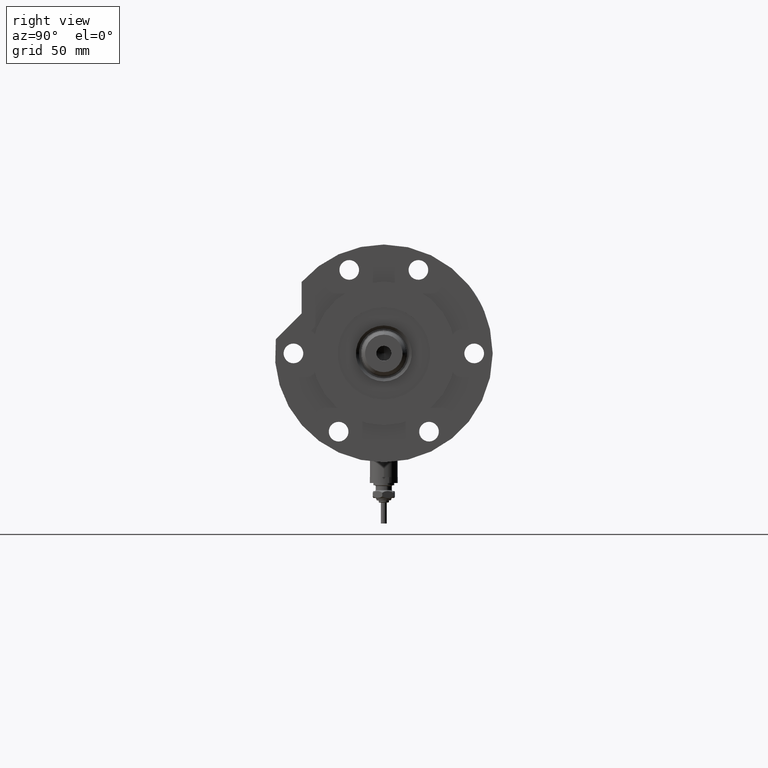
[diagram: clean part render]
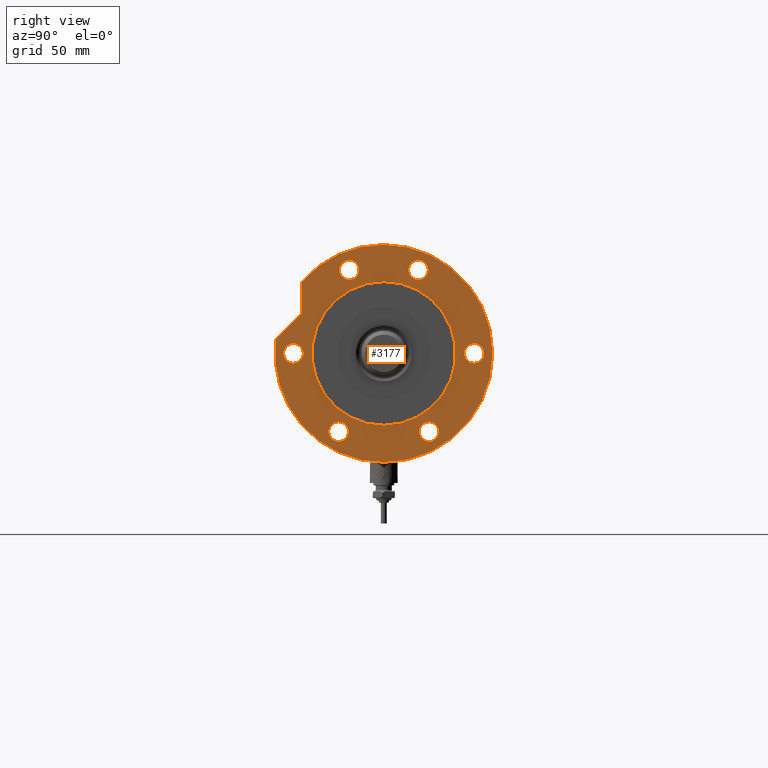
[diagram: same view with one face highlighted and labeled with its STEP entity id]
A machine part, right view. The second image highlights one B-rep face of the part: STEP entity #3177.
In plain terms, the highlighted planar face has unit normal (1, 0, -0).
Its self-contained STEP definition (entity closure, byte-faithful):
#42 = CARTESIAN_POINT ( 'NONE',  ( 31.78130176794011064, -14.92465386223865842, 17.00000000000000000 ) ) ;
#89 = DIRECTION ( 'NONE',  ( 1.000000000000000000, -1.019675812477181804E-15, 0.000000000000000000 ) ) ;
#247 = AXIS2_PLACEMENT_3D ( 'NONE', #6809, #4308, #6127 ) ;
#252 = VERTEX_POINT ( 'NONE', #5982 ) ;
#267 = DIRECTION ( 'NONE',  ( 0.000000000000000000, 0.000000000000000000, 1.000000000000000000 ) ) ;
#291 = VERTEX_POINT ( 'NONE', #2147 ) ;
#339 = ORIENTED_EDGE ( 'NONE', *, *, #3089, .F. ) ;
#471 = AXIS2_PLACEMENT_3D ( 'NONE', #6468, #4689, #1559 ) ;
#517 = DIRECTION ( 'NONE',  ( 1.000000000000000000, 0.000000000000000000, 0.000000000000000000 ) ) ;
#532 = FACE_BOUND ( 'NONE', #7524, .T. ) ;
#664 = CIRCLE ( 'NONE', #3884, 46.99999999999999289 ) ;
#724 = VERTEX_POINT ( 'NONE', #7881 ) ;
#727 = LINE ( 'NONE', #3143, #4919 ) ;
#850 = CARTESIAN_POINT ( 'NONE',  ( 40.28130176794012129, 14.92465386223865842, 17.00000000000000000 ) ) ;
#902 = CIRCLE ( 'NONE', #4370, 4.249999999999996447 ) ;
#904 = CARTESIAN_POINT ( 'NONE',  ( 0.000000000000000000, 0.000000000000000000, 17.00000000000000000 ) ) ;
#938 = VERTEX_POINT ( 'NONE', #3900 ) ;
#964 = DIRECTION ( 'NONE',  ( 0.000000000000000000, 0.000000000000000000, 1.000000000000000000 ) ) ;
#1040 = AXIS2_PLACEMENT_3D ( 'NONE', #4759, #1699, #1101 ) ;
#1041 = DIRECTION ( 'NONE',  ( 0.000000000000000000, 0.000000000000000000, 1.000000000000000000 ) ) ;
#1084 = EDGE_CURVE ( 'NONE', #4467, #7807, #4343, .T. ) ;
#1093 = ORIENTED_EDGE ( 'NONE', *, *, #1318, .F. ) ;
#1101 = DIRECTION ( 'NONE',  ( 1.000000000000000000, 0.000000000000000000, 0.000000000000000000 ) ) ;
#1137 = FACE_BOUND ( 'NONE', #1389, .T. ) ;
#1175 = DIRECTION ( 'NONE',  ( 0.000000000000000000, 0.000000000000000000, 1.000000000000000000 ) ) ;
#1318 = EDGE_CURVE ( 'NONE', #6939, #6810, #2266, .T. ) ;
#1335 = CARTESIAN_POINT ( 'NONE',  ( 31.78130176794011064, 14.92465386223865842, 17.00000000000000000 ) ) ;
#1389 = EDGE_LOOP ( 'NONE', ( #4388, #4616 ) ) ;
#1489 = EDGE_CURVE ( 'NONE', #3229, #7894, #7440, .T. ) ;
#1559 = DIRECTION ( 'NONE',  ( 1.000000000000000000, 0.000000000000000000, 0.000000000000000000 ) ) ;
#1581 = DIRECTION ( 'NONE',  ( 1.000000000000000000, 0.000000000000000000, 0.000000000000000000 ) ) ;
#1594 = VECTOR ( 'NONE', #2215, 999.9999999999998863 ) ;
#1638 = CIRCLE ( 'NONE', #2540, 4.250000000000000888 ) ;
#1694 = EDGE_CURVE ( 'NONE', #724, #291, #1638, .T. ) ;
#1699 = DIRECTION ( 'NONE',  ( 0.000000000000000000, 0.000000000000000000, 1.000000000000000000 ) ) ;
#1751 = DIRECTION ( 'NONE',  ( 0.000000000000000000, 0.000000000000000000, 1.000000000000000000 ) ) ;
#1773 = FACE_BOUND ( 'NONE', #6610, .T. ) ;
#1811 = AXIS2_PLACEMENT_3D ( 'NONE', #6674, #2360, #6036 ) ;
#1840 = CARTESIAN_POINT ( 'NONE',  ( 0.000000000000000000, 0.000000000000000000, 17.00000000000000000 ) ) ;
#1885 = CARTESIAN_POINT ( 'NONE',  ( -38.02499074759302289, -19.50000000000015277, 17.00000000000000000 ) ) ;
#1899 = AXIS2_PLACEMENT_3D ( 'NONE', #2890, #1041, #2272 ) ;
#2018 = ORIENTED_EDGE ( 'NONE', *, *, #5916, .T. ) ;
#2033 = CIRCLE ( 'NONE', #6536, 4.250000000000000888 ) ;
#2045 = AXIS2_PLACEMENT_3D ( 'NONE', #6410, #4064, #1581 ) ;
#2127 = CARTESIAN_POINT ( 'NONE',  ( 4.250000000000000888, 39.00000000000000000, 17.00000000000000000 ) ) ;
#2147 = CARTESIAN_POINT ( 'NONE',  ( 4.250000000000000888, -39.00000000000000000, 17.00000000000000000 ) ) ;
#2199 = CIRCLE ( 'NONE', #1811, 4.250000000000000888 ) ;
#2215 = DIRECTION ( 'NONE',  ( 0.7071067811865511255, -0.7071067811865440200, 0.000000000000000000 ) ) ;
#2238 = EDGE_CURVE ( 'NONE', #6810, #6939, #3827, .T. ) ;
#2266 = CIRCLE ( 'NONE', #4330, 4.250000000000003553 ) ;
#2272 = DIRECTION ( 'NONE',  ( 1.000000000000000000, 0.000000000000000000, 0.000000000000000000 ) ) ;
#2320 = CARTESIAN_POINT ( 'NONE',  ( -38.02499074759315079, 19.49999999999992539, 17.00000000000000000 ) ) ;
#2334 = FACE_BOUND ( 'NONE', #5988, .T. ) ;
#2360 = DIRECTION ( 'NONE',  ( 0.000000000000000000, 0.000000000000000000, 1.000000000000000000 ) ) ;
#2416 = FACE_BOUND ( 'NONE', #6372, .T. ) ;
#2446 = CIRCLE ( 'NONE', #1040, 4.249999999999996447 ) ;
#2451 = AXIS2_PLACEMENT_3D ( 'NONE', #1840, #3531, #517 ) ;
#2501 = FACE_OUTER_BOUND ( 'NONE', #3793, .T. ) ;
#2540 = AXIS2_PLACEMENT_3D ( 'NONE', #4927, #4279, #7381 ) ;
#2692 = AXIS2_PLACEMENT_3D ( 'NONE', #3664, #1175, #3624 ) ;
#2720 = AXIS2_PLACEMENT_3D ( 'NONE', #7832, #1751, #4730 ) ;
#2768 = ORIENTED_EDGE ( 'NONE', *, *, #3468, .F. ) ;
#2816 = DIRECTION ( 'NONE',  ( 1.000000000000000000, 0.000000000000000000, 0.000000000000000000 ) ) ;
#2855 = VERTEX_POINT ( 'NONE', #7503 ) ;
#2890 = CARTESIAN_POINT ( 'NONE',  ( -33.77499074759302289, -19.50000000000015277, 17.00000000000000000 ) ) ;
#2933 = EDGE_CURVE ( 'NONE', #3904, #2964, #5901, .T. ) ;
#2964 = VERTEX_POINT ( 'NONE', #6983 ) ;
#2977 = EDGE_CURVE ( 'NONE', #5318, #6975, #2033, .T. ) ;
#2984 = FACE_BOUND ( 'NONE', #6025, .T. ) ;
#3055 = AXIS2_PLACEMENT_3D ( 'NONE', #5605, #5081, #4956 ) ;
#3089 = EDGE_CURVE ( 'NONE', #938, #3538, #5258, .T. ) ;
#3140 = CARTESIAN_POINT ( 'NONE',  ( 0.000000000000000000, 0.000000000000000000, 17.00000000000000000 ) ) ;
#3143 = CARTESIAN_POINT ( 'NONE',  ( 3.617158501555293296E-14, 35.47361286101151734, 17.00000000000000000 ) ) ;
#3177 = ADVANCED_FACE ( 'NONE', ( #1137, #532, #2334, #2984, #2416, #1773, #2501, #5448 ), #6689, .T. ) ;
#3196 = DIRECTION ( 'NONE',  ( 0.000000000000000000, 0.000000000000000000, 1.000000000000000000 ) ) ;
#3229 = VERTEX_POINT ( 'NONE', #6333 ) ;
#3241 = DIRECTION ( 'NONE',  ( 1.000000000000000000, 0.000000000000000000, 0.000000000000000000 ) ) ;
#3468 = EDGE_CURVE ( 'NONE', #3538, #938, #6549, .T. ) ;
#3531 = DIRECTION ( 'NONE',  ( 0.000000000000000000, 0.000000000000000000, 1.000000000000000000 ) ) ;
#3538 = VERTEX_POINT ( 'NONE', #42 ) ;
#3624 = DIRECTION ( 'NONE',  ( 1.000000000000000000, 0.000000000000000000, -0.000000000000000000 ) ) ;
#3644 = DIRECTION ( 'NONE',  ( 1.000000000000000000, 0.000000000000000000, 0.000000000000000000 ) ) ;
#3664 = CARTESIAN_POINT ( 'NONE',  ( 0.000000000000000000, 0.000000000000000000, 17.00000000000000000 ) ) ;
#3742 = CARTESIAN_POINT ( 'NONE',  ( -29.52499074759315434, 19.49999999999992539, 17.00000000000000000 ) ) ;
#3793 = EDGE_LOOP ( 'NONE', ( #5548, #7303, #7565, #4341, #2018 ) ) ;
#3820 = CARTESIAN_POINT ( 'NONE',  ( -31.00000000000000711, 0.000000000000000000, 17.00000000000000000 ) ) ;
#3823 = CARTESIAN_POINT ( 'NONE',  ( 46.99999999999999289, 5.755839955992559063E-15, 17.00000000000000000 ) ) ;
#3827 = CIRCLE ( 'NONE', #3055, 4.250000000000003553 ) ;
#3884 = AXIS2_PLACEMENT_3D ( 'NONE', #5950, #6706, #3644 ) ;
#3892 = CARTESIAN_POINT ( 'NONE',  ( 36.03130176794011419, 14.92465386223865842, 17.00000000000000000 ) ) ;
#3900 = CARTESIAN_POINT ( 'NONE',  ( 40.28130176794012129, -14.92465386223865842, 17.00000000000000000 ) ) ;
#3904 = VERTEX_POINT ( 'NONE', #3820 ) ;
#3905 = DIRECTION ( 'NONE',  ( 1.000000000000000000, 0.000000000000000000, 0.000000000000000000 ) ) ;
#3958 = EDGE_CURVE ( 'NONE', #2964, #3904, #3984, .T. ) ;
#3969 = EDGE_CURVE ( 'NONE', #5450, #7828, #902, .T. ) ;
#3984 = CIRCLE ( 'NONE', #5917, 31.00000000000000711 ) ;
#4064 = DIRECTION ( 'NONE',  ( 0.000000000000000000, 0.000000000000000000, 1.000000000000000000 ) ) ;
#4150 = ORIENTED_EDGE ( 'NONE', *, *, #5804, .F. ) ;
#4279 = DIRECTION ( 'NONE',  ( 0.000000000000000000, 0.000000000000000000, 1.000000000000000000 ) ) ;
#4308 = DIRECTION ( 'NONE',  ( 0.000000000000000000, 0.000000000000000000, 1.000000000000000000 ) ) ;
#4330 = AXIS2_PLACEMENT_3D ( 'NONE', #3892, #267, #7031 ) ;
#4341 = ORIENTED_EDGE ( 'NONE', *, *, #1489, .T. ) ;
#4343 = CIRCLE ( 'NONE', #1899, 4.250000000000003553 ) ;
#4370 = AXIS2_PLACEMENT_3D ( 'NONE', #6515, #964, #2816 ) ;
#4388 = ORIENTED_EDGE ( 'NONE', *, *, #2977, .F. ) ;
#4404 = CARTESIAN_POINT ( 'NONE',  ( 0.000000000000000000, 39.00000000000000000, 17.00000000000000000 ) ) ;
#4448 = ORIENTED_EDGE ( 'NONE', *, *, #5119, .F. ) ;
#4467 = VERTEX_POINT ( 'NONE', #7635 ) ;
#4616 = ORIENTED_EDGE ( 'NONE', *, *, #5468, .F. ) ;
#4689 = DIRECTION ( 'NONE',  ( 0.000000000000000000, 0.000000000000000000, 1.000000000000000000 ) ) ;
#4730 = DIRECTION ( 'NONE',  ( 1.000000000000000000, 0.000000000000000000, 0.000000000000000000 ) ) ;
#4746 = EDGE_CURVE ( 'NONE', #291, #724, #5149, .T. ) ;
#4759 = CARTESIAN_POINT ( 'NONE',  ( -33.77499074759315079, 19.49999999999992539, 17.00000000000000000 ) ) ;
#4919 = VECTOR ( 'NONE', #89, 1000.000000000000000 ) ;
#4927 = CARTESIAN_POINT ( 'NONE',  ( 0.000000000000000000, -39.00000000000000000, 17.00000000000000000 ) ) ;
#4956 = DIRECTION ( 'NONE',  ( 1.000000000000000000, 0.000000000000000000, 0.000000000000000000 ) ) ;
#5081 = DIRECTION ( 'NONE',  ( 0.000000000000000000, 0.000000000000000000, 1.000000000000000000 ) ) ;
#5119 = EDGE_CURVE ( 'NONE', #7828, #5450, #2446, .T. ) ;
#5149 = CIRCLE ( 'NONE', #7586, 4.250000000000000888 ) ;
#5258 = CIRCLE ( 'NONE', #247, 4.250000000000003553 ) ;
#5318 = VERTEX_POINT ( 'NONE', #6402 ) ;
#5448 = FACE_BOUND ( 'NONE', #5827, .T. ) ;
#5450 = VERTEX_POINT ( 'NONE', #2320 ) ;
#5468 = EDGE_CURVE ( 'NONE', #6975, #5318, #2199, .T. ) ;
#5547 = EDGE_CURVE ( 'NONE', #2855, #3229, #5931, .T. ) ;
#5548 = ORIENTED_EDGE ( 'NONE', *, *, #6840, .F. ) ;
#5605 = CARTESIAN_POINT ( 'NONE',  ( 36.03130176794011419, 14.92465386223865842, 17.00000000000000000 ) ) ;
#5658 = DIRECTION ( 'NONE',  ( 1.000000000000000000, 0.000000000000000000, 0.000000000000000000 ) ) ;
#5804 = EDGE_CURVE ( 'NONE', #7807, #4467, #6448, .T. ) ;
#5816 = DIRECTION ( 'NONE',  ( 1.000000000000000000, 0.000000000000000000, 0.000000000000000000 ) ) ;
#5827 = EDGE_LOOP ( 'NONE', ( #6690, #5927 ) ) ;
#5901 = CIRCLE ( 'NONE', #7563, 31.00000000000000711 ) ;
#5916 = EDGE_CURVE ( 'NONE', #7894, #5925, #664, .T. ) ;
#5917 = AXIS2_PLACEMENT_3D ( 'NONE', #3140, #7403, #3905 ) ;
#5925 = VERTEX_POINT ( 'NONE', #6107 ) ;
#5927 = ORIENTED_EDGE ( 'NONE', *, *, #3958, .F. ) ;
#5929 = CARTESIAN_POINT ( 'NONE',  ( 26.34789210900296652, 26.34789210900323297, 17.00000000000000000 ) ) ;
#5931 = CIRCLE ( 'NONE', #2451, 46.99999999999999289 ) ;
#5950 = CARTESIAN_POINT ( 'NONE',  ( 0.000000000000000000, 0.000000000000000000, 17.00000000000000000 ) ) ;
#5982 = CARTESIAN_POINT ( 'NONE',  ( 17.22217135699461110, 35.47361286101150313, 17.00000000000000000 ) ) ;
#5988 = EDGE_LOOP ( 'NONE', ( #2768, #339 ) ) ;
#6025 = EDGE_LOOP ( 'NONE', ( #6118, #6172 ) ) ;
#6036 = DIRECTION ( 'NONE',  ( 1.000000000000000000, 0.000000000000000000, 0.000000000000000000 ) ) ;
#6107 = CARTESIAN_POINT ( 'NONE',  ( 30.83217135699462830, 35.47361286101148892, 17.00000000000000000 ) ) ;
#6118 = ORIENTED_EDGE ( 'NONE', *, *, #1694, .F. ) ;
#6127 = DIRECTION ( 'NONE',  ( 1.000000000000000000, 0.000000000000000000, 0.000000000000000000 ) ) ;
#6172 = ORIENTED_EDGE ( 'NONE', *, *, #4746, .F. ) ;
#6235 = ORIENTED_EDGE ( 'NONE', *, *, #3969, .F. ) ;
#6263 = ORIENTED_EDGE ( 'NONE', *, *, #2238, .F. ) ;
#6333 = CARTESIAN_POINT ( 'NONE',  ( -46.99999999999999289, 0.000000000000000000, 17.00000000000000000 ) ) ;
#6372 = EDGE_LOOP ( 'NONE', ( #4150, #6785 ) ) ;
#6402 = CARTESIAN_POINT ( 'NONE',  ( -4.250000000000000888, 39.00000000000000000, 17.00000000000000000 ) ) ;
#6410 = CARTESIAN_POINT ( 'NONE',  ( 36.03130176794011419, -14.92465386223865842, 17.00000000000000000 ) ) ;
#6419 = DIRECTION ( 'NONE',  ( 0.000000000000000000, 0.000000000000000000, 1.000000000000000000 ) ) ;
#6448 = CIRCLE ( 'NONE', #2720, 4.250000000000003553 ) ;
#6468 = CARTESIAN_POINT ( 'NONE',  ( 0.000000000000000000, 0.000000000000000000, 17.00000000000000000 ) ) ;
#6515 = CARTESIAN_POINT ( 'NONE',  ( -33.77499074759315079, 19.49999999999992539, 17.00000000000000000 ) ) ;
#6536 = AXIS2_PLACEMENT_3D ( 'NONE', #4404, #3196, #5658 ) ;
#6549 = CIRCLE ( 'NONE', #2045, 4.250000000000003553 ) ;
#6610 = EDGE_LOOP ( 'NONE', ( #6235, #4448 ) ) ;
#6668 = EDGE_CURVE ( 'NONE', #2855, #252, #7737, .T. ) ;
#6674 = CARTESIAN_POINT ( 'NONE',  ( 0.000000000000000000, 39.00000000000000000, 17.00000000000000000 ) ) ;
#6689 = PLANE ( 'NONE',  #2692 ) ;
#6690 = ORIENTED_EDGE ( 'NONE', *, *, #2933, .F. ) ;
#6706 = DIRECTION ( 'NONE',  ( 0.000000000000000000, 0.000000000000000000, 1.000000000000000000 ) ) ;
#6746 = CARTESIAN_POINT ( 'NONE',  ( 0.000000000000000000, -39.00000000000000000, 17.00000000000000000 ) ) ;
#6785 = ORIENTED_EDGE ( 'NONE', *, *, #1084, .F. ) ;
#6809 = CARTESIAN_POINT ( 'NONE',  ( 36.03130176794011419, -14.92465386223865842, 17.00000000000000000 ) ) ;
#6810 = VERTEX_POINT ( 'NONE', #1335 ) ;
#6840 = EDGE_CURVE ( 'NONE', #252, #5925, #727, .T. ) ;
#6870 = DIRECTION ( 'NONE',  ( 0.000000000000000000, 0.000000000000000000, 1.000000000000000000 ) ) ;
#6939 = VERTEX_POINT ( 'NONE', #850 ) ;
#6975 = VERTEX_POINT ( 'NONE', #2127 ) ;
#6983 = CARTESIAN_POINT ( 'NONE',  ( 31.00000000000000711, 3.796405077356795904E-15, 17.00000000000000000 ) ) ;
#7031 = DIRECTION ( 'NONE',  ( 1.000000000000000000, 0.000000000000000000, 0.000000000000000000 ) ) ;
#7303 = ORIENTED_EDGE ( 'NONE', *, *, #6668, .F. ) ;
#7381 = DIRECTION ( 'NONE',  ( 1.000000000000000000, 0.000000000000000000, 0.000000000000000000 ) ) ;
#7403 = DIRECTION ( 'NONE',  ( 0.000000000000000000, 0.000000000000000000, 1.000000000000000000 ) ) ;
#7440 = CIRCLE ( 'NONE', #471, 46.99999999999999289 ) ;
#7503 = CARTESIAN_POINT ( 'NONE',  ( 6.092310621118299352, 46.60347359688769586, 17.00000000000000000 ) ) ;
#7524 = EDGE_LOOP ( 'NONE', ( #6263, #1093 ) ) ;
#7563 = AXIS2_PLACEMENT_3D ( 'NONE', #904, #6419, #5816 ) ;
#7565 = ORIENTED_EDGE ( 'NONE', *, *, #5547, .T. ) ;
#7586 = AXIS2_PLACEMENT_3D ( 'NONE', #6746, #6870, #3241 ) ;
#7635 = CARTESIAN_POINT ( 'NONE',  ( -29.52499074759301578, -19.50000000000015277, 17.00000000000000000 ) ) ;
#7737 = LINE ( 'NONE', #5929, #1594 ) ;
#7807 = VERTEX_POINT ( 'NONE', #1885 ) ;
#7828 = VERTEX_POINT ( 'NONE', #3742 ) ;
#7832 = CARTESIAN_POINT ( 'NONE',  ( -33.77499074759302289, -19.50000000000015277, 17.00000000000000000 ) ) ;
#7881 = CARTESIAN_POINT ( 'NONE',  ( -4.250000000000000888, -39.00000000000000000, 17.00000000000000000 ) ) ;
#7894 = VERTEX_POINT ( 'NONE', #3823 ) ;